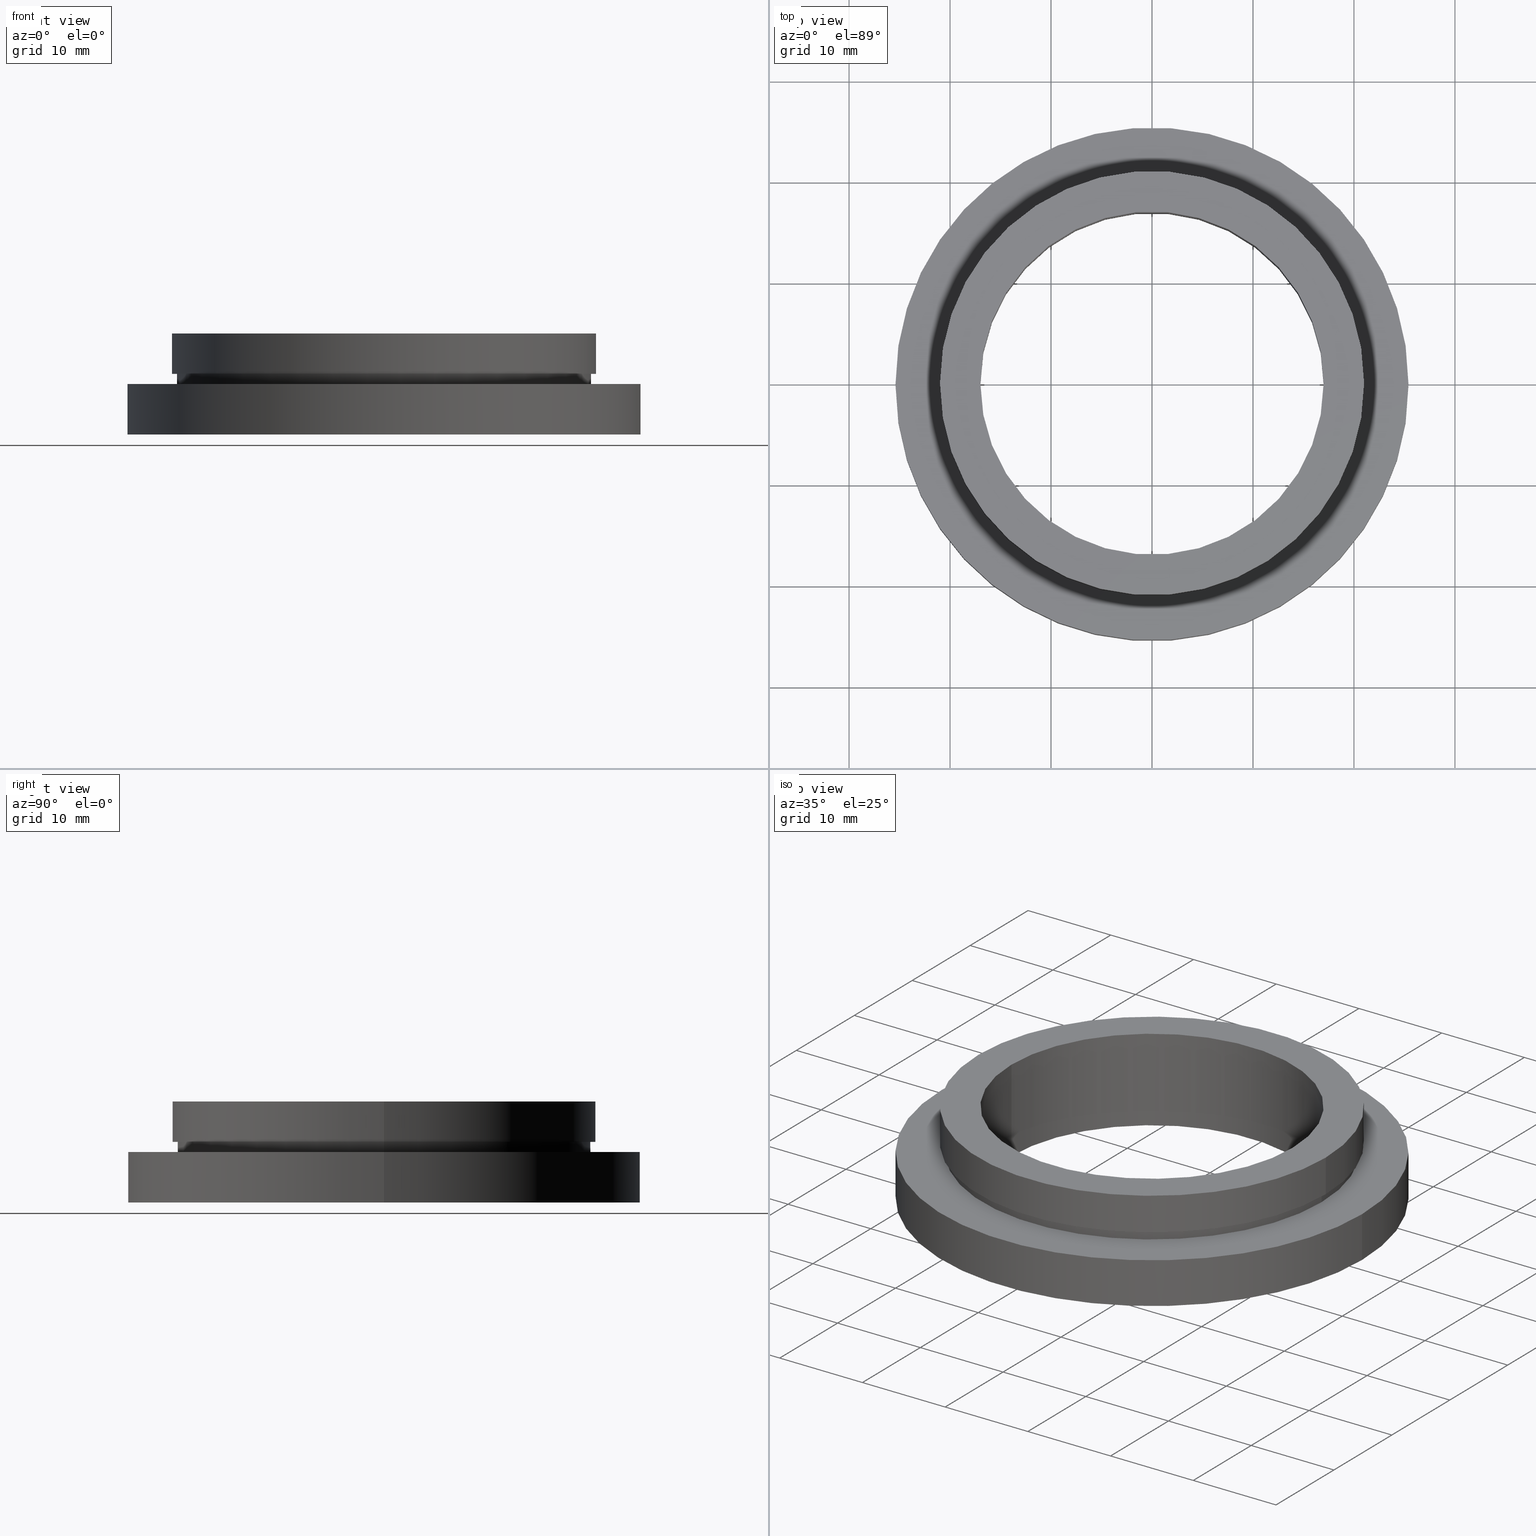
[diagram: canonical four-view strip — front | top / right | iso, engineering-drawing reading convention]
A machine part, canonical four-view strip (front | top / right | iso — engineering-drawing reading convention). The complete STEP part file that produces these views, byte-faithful:
ISO-10303-21;
HEADER;
FILE_DESCRIPTION (( 'STEP AP214' ),
    '1' );
FILE_NAME ('504030.STEP',
    '2019-09-16T03:02:55',
    ( 'user' ),
    ( '΢���й�' ),
    'SwSTEP 2.0',
    'SolidWorks 2016',
    '' );
FILE_SCHEMA (( 'AUTOMOTIVE_DESIGN' ));
ENDSEC;

DATA;
#1 = MECHANICAL_DESIGN_GEOMETRIC_PRESENTATION_REPRESENTATION (  '', ( #340 ), #328 ) ;
#2 = FACE_OUTER_BOUND ( 'NONE', #292, .T. ) ;
#3 = UNCERTAINTY_MEASURE_WITH_UNIT (LENGTH_MEASURE( 1.000000000000000100E-005 ), #169, 'distance_accuracy_value', 'NONE');
#4 = SURFACE_STYLE_USAGE ( .BOTH. , #245 ) ;
#5 = AXIS2_PLACEMENT_3D ( 'NONE', #32, #348, #191 ) ;
#6 = CARTESIAN_POINT ( 'NONE',  ( 0.0000000000000000000, 0.0000000000000000000, -10.00000000000000000 ) ) ;
#7 = PRODUCT_DEFINITION_CONTEXT ( 'detailed design', #282, 'design' ) ;
#8 = DIRECTION ( 'NONE',  ( -1.000000000000000000, 0.0000000000000000000, 0.0000000000000000000 ) ) ;
#9 = SURFACE_STYLE_FILL_AREA ( #299 ) ;
#10 = EDGE_CURVE ( 'NONE', #219, #157, #46, .T. ) ;
#11 = FILL_AREA_STYLE_COLOUR ( '', #62 ) ;
#12 = ORIENTED_EDGE ( 'NONE', *, *, #338, .F. ) ;
#13 = CARTESIAN_POINT ( 'NONE',  ( 20.50000000000000400, 2.510525938252074500E-015, -4.000000000000000000 ) ) ;
#14 = CARTESIAN_POINT ( 'NONE',  ( -25.39999999999999900, 0.0000000000000000000, -5.000000000000000900 ) ) ;
#15 = PRESENTATION_STYLE_ASSIGNMENT (( #92 ) ) ;
#16 = COLOUR_RGB ( '',1.000000000000000000, 1.000000000000000000, 1.000000000000000000 ) ;
#17 = ORIENTED_EDGE ( 'NONE', *, *, #105, .T. ) ;
#18 = LINE ( 'NONE', #253, #23 ) ;
#19 = ORIENTED_EDGE ( 'NONE', *, *, #400, .F. ) ;
#20 = DIRECTION ( 'NONE',  ( -0.0000000000000000000, -0.0000000000000000000, -1.000000000000000000 ) ) ;
#21 = PRESENTATION_LAYER_ASSIGNMENT (  '', '', ( #182 ) ) ;
#22 =( NAMED_UNIT ( * ) SI_UNIT ( $, .STERADIAN. ) SOLID_ANGLE_UNIT ( ) );
#23 = VECTOR ( 'NONE', #290, 1000.000000000000000 ) ;
#24 =( NAMED_UNIT ( * ) PLANE_ANGLE_UNIT ( ) SI_UNIT ( $, .RADIAN. ) );
#25 = CARTESIAN_POINT ( 'NONE',  ( -21.00000000000000400, 0.0000000000000000000, -19.14057971014493000 ) ) ;
#26 = CIRCLE ( 'NONE', #164, 17.00000000000000400 ) ;
#27 = ORIENTED_EDGE ( 'NONE', *, *, #360, .F. ) ;
#28 = VECTOR ( 'NONE', #179, 1000.000000000000000 ) ;
#29 = DIRECTION ( 'NONE',  ( -0.0000000000000000000, -0.0000000000000000000, -1.000000000000000000 ) ) ;
#30 = EDGE_CURVE ( 'NONE', #315, #326, #63, .T. ) ;
#31 = SURFACE_STYLE_FILL_AREA ( #38 ) ;
#32 = CARTESIAN_POINT ( 'NONE',  ( 25.39999999999999900, 0.0000000000000000000, -9.999999999999998200 ) ) ;
#33 = CARTESIAN_POINT ( 'NONE',  ( 21.00000000000000400, 2.571758278209442100E-015, -4.000000000000000000 ) ) ;
#34 = CIRCLE ( 'NONE', #269, 20.50000000000000400 ) ;
#35 = PRESENTATION_STYLE_ASSIGNMENT (( #409 ) ) ;
#36 = ORIENTED_EDGE ( 'NONE', *, *, #276, .T. ) ;
#37 = APPLICATION_PROTOCOL_DEFINITION ( 'draft international standard', 'automotive_design', 1998, #282 ) ;
#38 = FILL_AREA_STYLE ('',( #248 ) ) ;
#39 = FACE_BOUND ( 'NONE', #320, .T. ) ;
#40 = CARTESIAN_POINT ( 'NONE',  ( 0.0000000000000000000, 0.0000000000000000000, 0.0000000000000000000 ) ) ;
#41 = ORIENTED_EDGE ( 'NONE', *, *, #250, .F. ) ;
#42 = DIRECTION ( 'NONE',  ( -1.000000000000000000, 0.0000000000000000000, 0.0000000000000000000 ) ) ;
#43 = UNCERTAINTY_MEASURE_WITH_UNIT (LENGTH_MEASURE( 1.000000000000000100E-005 ), #202, 'distance_accuracy_value', 'NONE');
#44 = CYLINDRICAL_SURFACE ( 'NONE', #408, 17.00000000000000400 ) ;
#45 = DIRECTION ( 'NONE',  ( -1.000000000000000000, 0.0000000000000000000, 0.0000000000000000000 ) ) ;
#46 = CIRCLE ( 'NONE', #204, 21.00000000000000400 ) ;
#47 = EDGE_CURVE ( 'NONE', #188, #123, #18, .T. ) ;
#48 = CARTESIAN_POINT ( 'NONE',  ( 20.50000000000000400, 2.510525938252074500E-015, -5.000000000000000900 ) ) ;
#49 = EDGE_LOOP ( 'NONE', ( #111, #421, #224, #405 ) ) ;
#50 = CARTESIAN_POINT ( 'NONE',  ( 17.00000000000000400, 2.081899558550500700E-015, -9.999999999999998200 ) ) ;
#51 = VERTEX_POINT ( 'NONE', #419 ) ;
#52 = MECHANICAL_DESIGN_GEOMETRIC_PRESENTATION_REPRESENTATION (  '', ( #163 ), #137 ) ;
#53 = DIRECTION ( 'NONE',  ( -0.0000000000000000000, 0.0000000000000000000, -1.000000000000000000 ) ) ;
#54 = PRESENTATION_LAYER_ASSIGNMENT (  '', '', ( #337 ) ) ;
#55 = DIRECTION ( 'NONE',  ( -1.000000000000000000, 0.0000000000000000000, 0.0000000000000000000 ) ) ;
#56 = ORIENTED_EDGE ( 'NONE', *, *, #241, .T. ) ;
#57 = ORIENTED_EDGE ( 'NONE', *, *, #30, .F. ) ;
#58 =( GEOMETRIC_REPRESENTATION_CONTEXT ( 3 ) GLOBAL_UNCERTAINTY_ASSIGNED_CONTEXT ( ( #368 ) ) GLOBAL_UNIT_ASSIGNED_CONTEXT ( ( #298, #260, #22 ) ) REPRESENTATION_CONTEXT ( 'NONE', 'WORKASPACE' ) );
#59 = CARTESIAN_POINT ( 'NONE',  ( 0.0000000000000000000, 0.0000000000000000000, -19.14057971014493000 ) ) ;
#60 = LINE ( 'NONE', #134, #332 ) ;
#61 = FILL_AREA_STYLE_COLOUR ( '', #16 ) ;
#62 = COLOUR_RGB ( '',1.000000000000000000, 1.000000000000000000, 1.000000000000000000 ) ;
#63 = LINE ( 'NONE', #80, #236 ) ;
#64 = CARTESIAN_POINT ( 'NONE',  ( 0.0000000000000000000, 0.0000000000000000000, -19.14057971014493000 ) ) ;
#65 = PRESENTATION_STYLE_ASSIGNMENT (( #87 ) ) ;
#66 = ORIENTED_EDGE ( 'NONE', *, *, #47, .T. ) ;
#67 = EDGE_LOOP ( 'NONE', ( #422, #85 ) ) ;
#68 = PRESENTATION_LAYER_ASSIGNMENT (  '', '', ( #86 ) ) ;
#69 = PRODUCT_CONTEXT ( 'NONE', #71, 'mechanical' ) ;
#70 = CYLINDRICAL_SURFACE ( 'NONE', #365, 21.00000000000000400 ) ;
#71 = APPLICATION_CONTEXT ( 'automotive_design' ) ;
#72 = VERTEX_POINT ( 'NONE', #14 ) ;
#73 = ORIENTED_EDGE ( 'NONE', *, *, #276, .F. ) ;
#74 = DIRECTION ( 'NONE',  ( -1.000000000000000000, 0.0000000000000000000, 0.0000000000000000000 ) ) ;
#75 = AXIS2_PLACEMENT_3D ( 'NONE', #117, #53, #42 ) ;
#76 = DIRECTION ( 'NONE',  ( -1.000000000000000000, 0.0000000000000000000, 0.0000000000000000000 ) ) ;
#77 = AXIS2_PLACEMENT_3D ( 'NONE', #59, #29, #94 ) ;
#78 = EDGE_LOOP ( 'NONE', ( #375, #246 ) ) ;
#79 = AXIS2_PLACEMENT_3D ( 'NONE', #6, #211, #412 ) ;
#80 = CARTESIAN_POINT ( 'NONE',  ( -17.00000000000000400, 0.0000000000000000000, -19.14057971014493000 ) ) ;
#81 = CYLINDRICAL_SURFACE ( 'NONE', #99, 20.50000000000000400 ) ;
#82 = UNCERTAINTY_MEASURE_WITH_UNIT (LENGTH_MEASURE( 1.000000000000000100E-005 ), #265, 'distance_accuracy_value', 'NONE');
#83 = DIRECTION ( 'NONE',  ( -0.0000000000000000000, -0.0000000000000000000, -1.000000000000000000 ) ) ;
#84 = VERTEX_POINT ( 'NONE', #33 ) ;
#85 = ORIENTED_EDGE ( 'NONE', *, *, #257, .T. ) ;
#86 = STYLED_ITEM ( 'NONE', ( #15 ), #237 ) ;
#87 = SURFACE_STYLE_USAGE ( .BOTH. , #334 ) ;
#88 = FACE_OUTER_BOUND ( 'NONE', #358, .T. ) ;
#89 = SURFACE_SIDE_STYLE ('',( #162 ) ) ;
#90 = CARTESIAN_POINT ( 'NONE',  ( 0.0000000000000000000, 0.0000000000000000000, 0.0000000000000000000 ) ) ;
#91 = AXIS2_PLACEMENT_3D ( 'NONE', #214, #170, #8 ) ;
#92 = SURFACE_STYLE_USAGE ( .BOTH. , #243 ) ;
#93 = CIRCLE ( 'NONE', #295, 21.00000000000000400 ) ;
#94 = DIRECTION ( 'NONE',  ( -1.000000000000000000, 0.0000000000000000000, 0.0000000000000000000 ) ) ;
#95 = EDGE_LOOP ( 'NONE', ( #19, #389, #97, #407 ) ) ;
#96 = DIRECTION ( 'NONE',  ( -0.0000000000000000000, -0.0000000000000000000, -1.000000000000000000 ) ) ;
#97 = ORIENTED_EDGE ( 'NONE', *, *, #30, .T. ) ;
#98 = EDGE_CURVE ( 'NONE', #304, #326, #258, .T. ) ;
#99 = AXIS2_PLACEMENT_3D ( 'NONE', #403, #433, #369 ) ;
#100 = EDGE_CURVE ( 'NONE', #235, #112, #181, .T. ) ;
#101 = FACE_BOUND ( 'NONE', #252, .T. ) ;
#102 = EDGE_LOOP ( 'NONE', ( #230, #223, #36, #131 ) ) ;
#103 = DIRECTION ( 'NONE',  ( 1.000000000000000000, 0.0000000000000000000, 0.0000000000000000000 ) ) ;
#104 = APPLICATION_PROTOCOL_DEFINITION ( 'draft international standard', 'automotive_design', 1998, #71 ) ;
#105 = EDGE_CURVE ( 'NONE', #125, #84, #132, .T. ) ;
#106 = FILL_AREA_STYLE ('',( #150 ) ) ;
#107 = CARTESIAN_POINT ( 'NONE',  ( 0.0000000000000000000, 0.0000000000000000000, -9.999999999999998200 ) ) ;
#108 = LINE ( 'NONE', #355, #278 ) ;
#109 = CARTESIAN_POINT ( 'NONE',  ( 0.0000000000000000000, 0.0000000000000000000, -4.000000000000000000 ) ) ;
#110 = DIRECTION ( 'NONE',  ( -0.0000000000000000000, -0.0000000000000000000, -1.000000000000000000 ) ) ;
#111 = ORIENTED_EDGE ( 'NONE', *, *, #100, .T. ) ;
#112 = VERTEX_POINT ( 'NONE', #13 ) ;
#113 = CARTESIAN_POINT ( 'NONE',  ( -20.50000000000000400, 0.0000000000000000000, -5.000000000000000900 ) ) ;
#114 = FILL_AREA_STYLE_COLOUR ( '', #385 ) ;
#115 = ORIENTED_EDGE ( 'NONE', *, *, #400, .T. ) ;
#116 = PRESENTATION_LAYER_ASSIGNMENT (  '', '', ( #163 ) ) ;
#117 = CARTESIAN_POINT ( 'NONE',  ( 20.50000000000000400, 0.0000000000000000000, -5.000000000000000000 ) ) ;
#118 = CARTESIAN_POINT ( 'NONE',  ( -17.00000000000000400, 0.0000000000000000000, 0.0000000000000000000 ) ) ;
#119 = ORIENTED_EDGE ( 'NONE', *, *, #420, .F. ) ;
#120 =( NAMED_UNIT ( * ) SI_UNIT ( $, .STERADIAN. ) SOLID_ANGLE_UNIT ( ) );
#121 = CARTESIAN_POINT ( 'NONE',  ( 0.0000000000000000000, 0.0000000000000000000, -10.00000000000000000 ) ) ;
#122 = DIRECTION ( 'NONE',  ( -0.0000000000000000000, -0.0000000000000000000, -1.000000000000000000 ) ) ;
#123 = VERTEX_POINT ( 'NONE', #136 ) ;
#124 = COLOUR_RGB ( '',1.000000000000000000, 1.000000000000000000, 1.000000000000000000 ) ;
#125 = VERTEX_POINT ( 'NONE', #354 ) ;
#126 = ORIENTED_EDGE ( 'NONE', *, *, #347, .F. ) ;
#127 = DIRECTION ( 'NONE',  ( -0.0000000000000000000, -0.0000000000000000000, -1.000000000000000000 ) ) ;
#128 = AXIS2_PLACEMENT_3D ( 'NONE', #216, #175, #384 ) ;
#129 = PRESENTATION_LAYER_ASSIGNMENT (  '', '', ( #340 ) ) ;
#130 =( NAMED_UNIT ( * ) SI_UNIT ( $, .STERADIAN. ) SOLID_ANGLE_UNIT ( ) );
#131 = ORIENTED_EDGE ( 'NONE', *, *, #335, .F. ) ;
#132 = CIRCLE ( 'NONE', #165, 21.00000000000000400 ) ;
#133 = DIRECTION ( 'NONE',  ( -0.0000000000000000000, -0.0000000000000000000, -1.000000000000000000 ) ) ;
#134 = CARTESIAN_POINT ( 'NONE',  ( 17.00000000000000400, 2.081899558550500700E-015, -19.14057971014493000 ) ) ;
#135 =( GEOMETRIC_REPRESENTATION_CONTEXT ( 3 ) GLOBAL_UNCERTAINTY_ASSIGNED_CONTEXT ( ( #43 ) ) GLOBAL_UNIT_ASSIGNED_CONTEXT ( ( #202, #373, #429 ) ) REPRESENTATION_CONTEXT ( 'NONE', 'WORKASPACE' ) );
#136 = CARTESIAN_POINT ( 'NONE',  ( 25.39999999999999900, 3.110602869834276900E-015, -10.00000000000000000 ) ) ;
#137 =( GEOMETRIC_REPRESENTATION_CONTEXT ( 3 ) GLOBAL_UNCERTAINTY_ASSIGNED_CONTEXT ( ( #279 ) ) GLOBAL_UNIT_ASSIGNED_CONTEXT ( ( #152, #366, #120 ) ) REPRESENTATION_CONTEXT ( 'NONE', 'WORKASPACE' ) );
#138 = FACE_OUTER_BOUND ( 'NONE', #67, .T. ) ;
#139 = ORIENTED_EDGE ( 'NONE', *, *, #309, .F. ) ;
#140 = CARTESIAN_POINT ( 'NONE',  ( 0.0000000000000000000, 0.0000000000000000000, 0.0000000000000000000 ) ) ;
#141 = CARTESIAN_POINT ( 'NONE',  ( 25.39999999999999900, 3.110602869834276900E-015, -5.000000000000000900 ) ) ;
#142 = VECTOR ( 'NONE', #229, 1000.000000000000000 ) ;
#143 = DIRECTION ( 'NONE',  ( -1.000000000000000000, 0.0000000000000000000, 0.0000000000000000000 ) ) ;
#144 = CIRCLE ( 'NONE', #283, 17.00000000000000400 ) ;
#145 = ORIENTED_EDGE ( 'NONE', *, *, #98, .F. ) ;
#146 = CARTESIAN_POINT ( 'NONE',  ( 17.00000000000000400, 2.081899558550500700E-015, 0.0000000000000000000 ) ) ;
#147 = DIRECTION ( 'NONE',  ( -1.000000000000000000, 0.0000000000000000000, 0.0000000000000000000 ) ) ;
#148 = DIRECTION ( 'NONE',  ( -1.000000000000000000, 0.0000000000000000000, 0.0000000000000000000 ) ) ;
#149 = CYLINDRICAL_SURFACE ( 'NONE', #77, 21.00000000000000400 ) ;
#150 = FILL_AREA_STYLE_COLOUR ( '', #391 ) ;
#151 = DIRECTION ( 'NONE',  ( -1.000000000000000000, 0.0000000000000000000, 0.0000000000000000000 ) ) ;
#152 =( LENGTH_UNIT ( ) NAMED_UNIT ( * ) SI_UNIT ( .MILLI., .METRE. ) );
#153 = SURFACE_STYLE_FILL_AREA ( #106 ) ;
#154 = MANIFOLD_SOLID_BREP ( '��ת1', #357 ) ;
#155 = VECTOR ( 'NONE', #122, 1000.000000000000000 ) ;
#156 = DIRECTION ( 'NONE',  ( -0.0000000000000000000, -0.0000000000000000000, -1.000000000000000000 ) ) ;
#157 = VERTEX_POINT ( 'NONE', #325 ) ;
#158 = ORIENTED_EDGE ( 'NONE', *, *, #192, .T. ) ;
#159 = PLANE ( 'NONE',  #5 ) ;
#160 = FACE_BOUND ( 'NONE', #180, .T. ) ;
#161 = PRESENTATION_STYLE_ASSIGNMENT (( #4 ) ) ;
#162 = SURFACE_STYLE_FILL_AREA ( #267 ) ;
#163 = STYLED_ITEM ( 'NONE', ( #430 ), #263 ) ;
#164 = AXIS2_PLACEMENT_3D ( 'NONE', #90, #301, #55 ) ;
#165 = AXIS2_PLACEMENT_3D ( 'NONE', #109, #324, #76 ) ;
#166 = SURFACE_STYLE_FILL_AREA ( #431 ) ;
#167 =( NAMED_UNIT ( * ) SI_UNIT ( $, .STERADIAN. ) SOLID_ANGLE_UNIT ( ) );
#168 = ORIENTED_EDGE ( 'NONE', *, *, #331, .T. ) ;
#169 =( LENGTH_UNIT ( ) NAMED_UNIT ( * ) SI_UNIT ( .MILLI., .METRE. ) );
#170 = DIRECTION ( 'NONE',  ( -0.0000000000000000000, -0.0000000000000000000, -1.000000000000000000 ) ) ;
#171 = CYLINDRICAL_SURFACE ( 'NONE', #222, 17.00000000000000400 ) ;
#172 = SURFACE_SIDE_STYLE ('',( #418 ) ) ;
#173 = CYLINDRICAL_SURFACE ( 'NONE', #314, 20.50000000000000400 ) ;
#174 = ORIENTED_EDGE ( 'NONE', *, *, #209, .T. ) ;
#175 = DIRECTION ( 'NONE',  ( -0.0000000000000000000, -0.0000000000000000000, -1.000000000000000000 ) ) ;
#176 = DIRECTION ( 'NONE',  ( -0.0000000000000000000, -0.0000000000000000000, -1.000000000000000000 ) ) ;
#177 = AXIS2_PLACEMENT_3D ( 'NONE', #187, #393, #147 ) ;
#178 = FACE_OUTER_BOUND ( 'NONE', #194, .T. ) ;
#179 = DIRECTION ( 'NONE',  ( -0.0000000000000000000, -0.0000000000000000000, -1.000000000000000000 ) ) ;
#180 = EDGE_LOOP ( 'NONE', ( #287, #126 ) ) ;
#181 = CIRCLE ( 'NONE', #128, 20.50000000000000400 ) ;
#182 = STYLED_ITEM ( 'NONE', ( #35 ), #154 ) ;
#183 = EDGE_LOOP ( 'NONE', ( #247, #414, #240, #392 ) ) ;
#184 = CARTESIAN_POINT ( 'NONE',  ( 0.0000000000000000000, 0.0000000000000000000, -4.000000000000000000 ) ) ;
#185 = CARTESIAN_POINT ( 'NONE',  ( -20.50000000000000400, 0.0000000000000000000, -4.000000000000000000 ) ) ;
#186 = DIRECTION ( 'NONE',  ( -1.000000000000000000, 0.0000000000000000000, 0.0000000000000000000 ) ) ;
#187 = CARTESIAN_POINT ( 'NONE',  ( 0.0000000000000000000, 0.0000000000000000000, -5.000000000000000900 ) ) ;
#188 = VERTEX_POINT ( 'NONE', #141 ) ;
#189 = CARTESIAN_POINT ( 'NONE',  ( 0.0000000000000000000, 0.0000000000000000000, -19.14057971014493000 ) ) ;
#190 = DIRECTION ( 'NONE',  ( -0.0000000000000000000, -0.0000000000000000000, -1.000000000000000000 ) ) ;
#191 = DIRECTION ( 'NONE',  ( 1.000000000000000000, 0.0000000000000000000, -0.0000000000000000000 ) ) ;
#192 = EDGE_CURVE ( 'NONE', #219, #84, #273, .T. ) ;
#193 = DIRECTION ( 'NONE',  ( 1.000000000000000000, 0.0000000000000000000, -0.0000000000000000000 ) ) ;
#194 = EDGE_LOOP ( 'NONE', ( #313, #158, #293, #73 ) ) ;
#195 = SURFACE_SIDE_STYLE ('',( #166 ) ) ;
#196 = AXIS2_PLACEMENT_3D ( 'NONE', #259, #20, #221 ) ;
#197 = MECHANICAL_DESIGN_GEOMETRIC_PRESENTATION_REPRESENTATION (  '', ( #207 ), #58 ) ;
#198 = PLANE ( 'NONE',  #75 ) ;
#199 = UNCERTAINTY_MEASURE_WITH_UNIT (LENGTH_MEASURE( 1.000000000000000100E-005 ), #210, 'distance_accuracy_value', 'NONE');
#200 =( GEOMETRIC_REPRESENTATION_CONTEXT ( 3 ) GLOBAL_UNCERTAINTY_ASSIGNED_CONTEXT ( ( #199 ) ) GLOBAL_UNIT_ASSIGNED_CONTEXT ( ( #210, #410, #167 ) ) REPRESENTATION_CONTEXT ( 'NONE', 'WORKASPACE' ) );
#201 = CIRCLE ( 'NONE', #270, 20.50000000000000400 ) ;
#202 =( LENGTH_UNIT ( ) NAMED_UNIT ( * ) SI_UNIT ( .MILLI., .METRE. ) );
#203 = LINE ( 'NONE', #432, #397 ) ;
#204 = AXIS2_PLACEMENT_3D ( 'NONE', #140, #176, #45 ) ;
#205 = FACE_OUTER_BOUND ( 'NONE', #95, .T. ) ;
#206 = ORIENTED_EDGE ( 'NONE', *, *, #335, .T. ) ;
#207 = STYLED_ITEM ( 'NONE', ( #65 ), #330 ) ;
#208 = ORIENTED_EDGE ( 'NONE', *, *, #213, .F. ) ;
#209 = EDGE_CURVE ( 'NONE', #235, #372, #108, .T. ) ;
#210 =( LENGTH_UNIT ( ) NAMED_UNIT ( * ) SI_UNIT ( .MILLI., .METRE. ) );
#211 = DIRECTION ( 'NONE',  ( -0.0000000000000000000, -0.0000000000000000000, -1.000000000000000000 ) ) ;
#212 = PRODUCT_RELATED_PRODUCT_CATEGORY ( 'part', '', ( #362 ) ) ;
#213 = EDGE_CURVE ( 'NONE', #112, #344, #203, .T. ) ;
#214 = CARTESIAN_POINT ( 'NONE',  ( 0.0000000000000000000, 0.0000000000000000000, -19.14057971014493000 ) ) ;
#215 = EDGE_LOOP ( 'NONE', ( #139, #115, #406, #57 ) ) ;
#216 = CARTESIAN_POINT ( 'NONE',  ( 0.0000000000000000000, 0.0000000000000000000, -4.000000000000000000 ) ) ;
#217 = AXIS2_PLACEMENT_3D ( 'NONE', #339, #396, #151 ) ;
#218 = ORIENTED_EDGE ( 'NONE', *, *, #331, .F. ) ;
#219 = VERTEX_POINT ( 'NONE', #426 ) ;
#220 = DIRECTION ( 'NONE',  ( -0.0000000000000000000, -0.0000000000000000000, -1.000000000000000000 ) ) ;
#221 = DIRECTION ( 'NONE',  ( -1.000000000000000000, 0.0000000000000000000, 0.0000000000000000000 ) ) ;
#222 = AXIS2_PLACEMENT_3D ( 'NONE', #189, #333, #394 ) ;
#223 = ORIENTED_EDGE ( 'NONE', *, *, #10, .T. ) ;
#224 = ORIENTED_EDGE ( 'NONE', *, *, #310, .F. ) ;
#225 = CARTESIAN_POINT ( 'NONE',  ( -17.00000000000000400, 0.0000000000000000000, -9.999999999999998200 ) ) ;
#226 =( NAMED_UNIT ( * ) SI_UNIT ( $, .STERADIAN. ) SOLID_ANGLE_UNIT ( ) );
#227 = ADVANCED_FACE ( 'NONE', ( #281, #101 ), #198, .F. ) ;
#228 = CARTESIAN_POINT ( 'NONE',  ( 0.0000000000000000000, 0.0000000000000000000, -5.000000000000000900 ) ) ;
#229 = DIRECTION ( 'NONE',  ( -0.0000000000000000000, -0.0000000000000000000, -1.000000000000000000 ) ) ;
#230 = ORIENTED_EDGE ( 'NONE', *, *, #192, .F. ) ;
#231 = PLANE ( 'NONE',  #291 ) ;
#232 = ADVANCED_FACE ( 'NONE', ( #2 ), #434, .T. ) ;
#233 = DIRECTION ( 'NONE',  ( 0.0000000000000000000, 0.0000000000000000000, 1.000000000000000000 ) ) ;
#234 = CIRCLE ( 'NONE', #79, 25.39999999999999900 ) ;
#235 = VERTEX_POINT ( 'NONE', #185 ) ;
#236 = VECTOR ( 'NONE', #110, 1000.000000000000000 ) ;
#237 = ADVANCED_FACE ( 'NONE', ( #205 ), #44, .F. ) ;
#238 = ADVANCED_FACE ( 'NONE', ( #39, #138 ), #159, .F. ) ;
#239 = ORIENTED_EDGE ( 'NONE', *, *, #310, .T. ) ;
#240 = ORIENTED_EDGE ( 'NONE', *, *, #250, .T. ) ;
#241 = EDGE_CURVE ( 'NONE', #72, #188, #342, .T. ) ;
#242 = AXIS2_PLACEMENT_3D ( 'NONE', #329, #83, #294 ) ;
#243 = SURFACE_SIDE_STYLE ('',( #153 ) ) ;
#244 = CIRCLE ( 'NONE', #346, 17.00000000000000400 ) ;
#245 = SURFACE_SIDE_STYLE ('',( #31 ) ) ;
#246 = ORIENTED_EDGE ( 'NONE', *, *, #322, .F. ) ;
#247 = ORIENTED_EDGE ( 'NONE', *, *, #47, .F. ) ;
#248 = FILL_AREA_STYLE_COLOUR ( '', #124 ) ;
#249 = MECHANICAL_DESIGN_GEOMETRIC_PRESENTATION_REPRESENTATION (  '', ( #337 ), #200 ) ;
#250 = EDGE_CURVE ( 'NONE', #72, #51, #272, .T. ) ;
#251 = DIRECTION ( 'NONE',  ( -1.000000000000000000, 0.0000000000000000000, 0.0000000000000000000 ) ) ;
#252 = EDGE_LOOP ( 'NONE', ( #239, #168 ) ) ;
#253 = CARTESIAN_POINT ( 'NONE',  ( 25.39999999999999900, 3.110602869834276900E-015, -19.14057971014493000 ) ) ;
#254 = DIRECTION ( 'NONE',  ( -0.0000000000000000000, -0.0000000000000000000, -1.000000000000000000 ) ) ;
#255 = FACE_OUTER_BOUND ( 'NONE', #215, .T. ) ;
#256 = CIRCLE ( 'NONE', #196, 20.50000000000000400 ) ;
#257 = EDGE_CURVE ( 'NONE', #123, #51, #356, .T. ) ;
#258 = CIRCLE ( 'NONE', #351, 17.00000000000000400 ) ;
#259 = CARTESIAN_POINT ( 'NONE',  ( 0.0000000000000000000, 0.0000000000000000000, -5.000000000000000900 ) ) ;
#260 =( NAMED_UNIT ( * ) PLANE_ANGLE_UNIT ( ) SI_UNIT ( $, .RADIAN. ) );
#261 = PRODUCT_DEFINITION_SHAPE ( 'NONE', 'NONE',  #380 ) ;
#262 = ADVANCED_FACE ( 'NONE', ( #312 ), #81, .T. ) ;
#263 = ADVANCED_FACE ( 'NONE', ( #178 ), #149, .T. ) ;
#264 = CIRCLE ( 'NONE', #177, 25.39999999999999900 ) ;
#265 =( LENGTH_UNIT ( ) NAMED_UNIT ( * ) SI_UNIT ( .MILLI., .METRE. ) );
#266 = ADVANCED_FACE ( 'NONE', ( #160, #404 ), #231, .F. ) ;
#267 = FILL_AREA_STYLE ('',( #114 ) ) ;
#268 = ADVANCED_FACE ( 'NONE', ( #425 ), #173, .T. ) ;
#269 = AXIS2_PLACEMENT_3D ( 'NONE', #417, #387, #383 ) ;
#270 = AXIS2_PLACEMENT_3D ( 'NONE', #228, #190, #364 ) ;
#271 = DIRECTION ( 'NONE',  ( -0.0000000000000000000, -0.0000000000000000000, -1.000000000000000000 ) ) ;
#272 = LINE ( 'NONE', #370, #155 ) ;
#273 = LINE ( 'NONE', #288, #28 ) ;
#274 = AXIS2_PLACEMENT_3D ( 'NONE', #363, #336, #148 ) ;
#275 = DIRECTION ( 'NONE',  ( -1.000000000000000000, 0.0000000000000000000, 0.0000000000000000000 ) ) ;
#276 = EDGE_CURVE ( 'NONE', #157, #125, #318, .T. ) ;
#277 = CYLINDRICAL_SURFACE ( 'NONE', #274, 25.39999999999999900 ) ;
#278 = VECTOR ( 'NONE', #254, 1000.000000000000000 ) ;
#279 = UNCERTAINTY_MEASURE_WITH_UNIT (LENGTH_MEASURE( 1.000000000000000100E-005 ), #152, 'distance_accuracy_value', 'NONE');
#280 = ADVANCED_FACE ( 'NONE', ( #88, #416 ), #427, .F. ) ;
#281 = FACE_OUTER_BOUND ( 'NONE', #78, .T. ) ;
#282 = APPLICATION_CONTEXT ( 'automotive_design' ) ;
#283 = AXIS2_PLACEMENT_3D ( 'NONE', #107, #323, #74 ) ;
#284 =( NAMED_UNIT ( * ) SI_UNIT ( $, .STERADIAN. ) SOLID_ANGLE_UNIT ( ) );
#285 = AXIS2_PLACEMENT_3D ( 'NONE', #345, #96, #307 ) ;
#286 = FACE_OUTER_BOUND ( 'NONE', #183, .T. ) ;
#287 = ORIENTED_EDGE ( 'NONE', *, *, #100, .F. ) ;
#288 = CARTESIAN_POINT ( 'NONE',  ( 21.00000000000000400, 2.571758278209442100E-015, -19.14057971014493000 ) ) ;
#289 = CARTESIAN_POINT ( 'NONE',  ( 0.0000000000000000000, 0.0000000000000000000, -9.999999999999998200 ) ) ;
#290 = DIRECTION ( 'NONE',  ( -0.0000000000000000000, -0.0000000000000000000, -1.000000000000000000 ) ) ;
#291 = AXIS2_PLACEMENT_3D ( 'NONE', #305, #233, #193 ) ;
#292 = EDGE_LOOP ( 'NONE', ( #56, #66, #119, #41 ) ) ;
#293 = ORIENTED_EDGE ( 'NONE', *, *, #105, .F. ) ;
#294 = DIRECTION ( 'NONE',  ( -1.000000000000000000, 0.0000000000000000000, 0.0000000000000000000 ) ) ;
#295 = AXIS2_PLACEMENT_3D ( 'NONE', #184, #390, #143 ) ;
#296 = PRESENTATION_LAYER_ASSIGNMENT (  '', '', ( #207 ) ) ;
#297 = COLOUR_RGB ( '',1.000000000000000000, 1.000000000000000000, 1.000000000000000000 ) ;
#298 =( LENGTH_UNIT ( ) NAMED_UNIT ( * ) SI_UNIT ( .MILLI., .METRE. ) );
#299 = FILL_AREA_STYLE ('',( #424 ) ) ;
#300 = SURFACE_STYLE_USAGE ( .BOTH. , #89 ) ;
#301 = DIRECTION ( 'NONE',  ( -0.0000000000000000000, -0.0000000000000000000, -1.000000000000000000 ) ) ;
#302 = SHAPE_DEFINITION_REPRESENTATION ( #261, #308 ) ;
#303 = VERTEX_POINT ( 'NONE', #146 ) ;
#304 = VERTEX_POINT ( 'NONE', #50 ) ;
#305 = CARTESIAN_POINT ( 'NONE',  ( 21.00000000000000400, 0.0000000000000000000, -4.000000000000000000 ) ) ;
#306 = DIRECTION ( 'NONE',  ( -1.000000000000000000, 0.0000000000000000000, 0.0000000000000000000 ) ) ;
#307 = DIRECTION ( 'NONE',  ( -1.000000000000000000, 0.0000000000000000000, 0.0000000000000000000 ) ) ;
#308 = ADVANCED_BREP_SHAPE_REPRESENTATION ( '504030', ( #154, #327 ), #371 ) ;
#309 = EDGE_CURVE ( 'NONE', #303, #315, #26, .T. ) ;
#310 = EDGE_CURVE ( 'NONE', #372, #344, #201, .T. ) ;
#311 = DIRECTION ( 'NONE',  ( -0.0000000000000000000, -0.0000000000000000000, -1.000000000000000000 ) ) ;
#312 = FACE_OUTER_BOUND ( 'NONE', #49, .T. ) ;
#313 = ORIENTED_EDGE ( 'NONE', *, *, #338, .T. ) ;
#314 = AXIS2_PLACEMENT_3D ( 'NONE', #399, #271, #428 ) ;
#315 = VERTEX_POINT ( 'NONE', #118 ) ;
#316 = ADVANCED_FACE ( 'NONE', ( #255 ), #171, .F. ) ;
#317 =( LENGTH_UNIT ( ) NAMED_UNIT ( * ) SI_UNIT ( .MILLI., .METRE. ) );
#318 = LINE ( 'NONE', #25, #142 ) ;
#319 = ORIENTED_EDGE ( 'NONE', *, *, #10, .F. ) ;
#320 = EDGE_LOOP ( 'NONE', ( #27, #145 ) ) ;
#321 = ADVANCED_FACE ( 'NONE', ( #286 ), #277, .T. ) ;
#322 = EDGE_CURVE ( 'NONE', #188, #72, #264, .T. ) ;
#323 = DIRECTION ( 'NONE',  ( -0.0000000000000000000, -0.0000000000000000000, -1.000000000000000000 ) ) ;
#324 = DIRECTION ( 'NONE',  ( -0.0000000000000000000, -0.0000000000000000000, -1.000000000000000000 ) ) ;
#325 = CARTESIAN_POINT ( 'NONE',  ( -21.00000000000000400, 0.0000000000000000000, 0.0000000000000000000 ) ) ;
#326 = VERTEX_POINT ( 'NONE', #225 ) ;
#327 = AXIS2_PLACEMENT_3D ( 'NONE', #40, #350, #103 ) ;
#328 =( GEOMETRIC_REPRESENTATION_CONTEXT ( 3 ) GLOBAL_UNCERTAINTY_ASSIGNED_CONTEXT ( ( #82 ) ) GLOBAL_UNIT_ASSIGNED_CONTEXT ( ( #265, #24, #226 ) ) REPRESENTATION_CONTEXT ( 'NONE', 'WORKASPACE' ) );
#329 = CARTESIAN_POINT ( 'NONE',  ( 0.0000000000000000000, 0.0000000000000000000, 0.0000000000000000000 ) ) ;
#330 = ADVANCED_FACE ( 'NONE', ( #361 ), #70, .T. ) ;
#331 = EDGE_CURVE ( 'NONE', #344, #372, #256, .T. ) ;
#332 = VECTOR ( 'NONE', #311, 1000.000000000000000 ) ;
#333 = DIRECTION ( 'NONE',  ( -0.0000000000000000000, -0.0000000000000000000, -1.000000000000000000 ) ) ;
#334 = SURFACE_SIDE_STYLE ('',( #9 ) ) ;
#335 = EDGE_CURVE ( 'NONE', #84, #125, #93, .T. ) ;
#336 = DIRECTION ( 'NONE',  ( -0.0000000000000000000, -0.0000000000000000000, -1.000000000000000000 ) ) ;
#337 = STYLED_ITEM ( 'NONE', ( #161 ), #308 ) ;
#338 = EDGE_CURVE ( 'NONE', #157, #219, #349, .T. ) ;
#339 = CARTESIAN_POINT ( 'NONE',  ( 17.00000000000000400, 0.0000000000000000000, 0.0000000000000000000 ) ) ;
#340 = STYLED_ITEM ( 'NONE', ( #341 ), #316 ) ;
#341 = PRESENTATION_STYLE_ASSIGNMENT (( #300 ) ) ;
#342 = CIRCLE ( 'NONE', #285, 25.39999999999999900 ) ;
#343 = DIRECTION ( 'NONE',  ( -0.0000000000000000000, -0.0000000000000000000, -1.000000000000000000 ) ) ;
#344 = VERTEX_POINT ( 'NONE', #48 ) ;
#345 = CARTESIAN_POINT ( 'NONE',  ( 0.0000000000000000000, 0.0000000000000000000, -5.000000000000000900 ) ) ;
#346 = AXIS2_PLACEMENT_3D ( 'NONE', #379, #133, #353 ) ;
#347 = EDGE_CURVE ( 'NONE', #112, #235, #34, .T. ) ;
#348 = DIRECTION ( 'NONE',  ( 0.0000000000000000000, 0.0000000000000000000, 1.000000000000000000 ) ) ;
#349 = CIRCLE ( 'NONE', #242, 21.00000000000000400 ) ;
#350 = DIRECTION ( 'NONE',  ( 0.0000000000000000000, 0.0000000000000000000, 1.000000000000000000 ) ) ;
#351 = AXIS2_PLACEMENT_3D ( 'NONE', #289, #220, #251 ) ;
#352 = EDGE_LOOP ( 'NONE', ( #208, #367, #174, #218 ) ) ;
#353 = DIRECTION ( 'NONE',  ( -1.000000000000000000, 0.0000000000000000000, 0.0000000000000000000 ) ) ;
#354 = CARTESIAN_POINT ( 'NONE',  ( -21.00000000000000400, 0.0000000000000000000, -4.000000000000000000 ) ) ;
#355 = CARTESIAN_POINT ( 'NONE',  ( -20.50000000000000400, 0.0000000000000000000, -19.14057971014493000 ) ) ;
#356 = CIRCLE ( 'NONE', #386, 25.39999999999999900 ) ;
#357 = CLOSED_SHELL ( 'NONE', ( #316, #232, #262, #263, #280, #330, #266, #268, #227, #321, #238, #237 ) ) ;
#358 = EDGE_LOOP ( 'NONE', ( #12, #319 ) ) ;
#359 = DIRECTION ( 'NONE',  ( -0.0000000000000000000, -0.0000000000000000000, -1.000000000000000000 ) ) ;
#360 = EDGE_CURVE ( 'NONE', #326, #304, #144, .T. ) ;
#361 = FACE_OUTER_BOUND ( 'NONE', #102, .T. ) ;
#362 = PRODUCT ( '504030', '504030', '', ( #69 ) ) ;
#363 = CARTESIAN_POINT ( 'NONE',  ( 0.0000000000000000000, 0.0000000000000000000, -19.14057971014493000 ) ) ;
#364 = DIRECTION ( 'NONE',  ( -1.000000000000000000, 0.0000000000000000000, 0.0000000000000000000 ) ) ;
#365 = AXIS2_PLACEMENT_3D ( 'NONE', #423, #359, #186 ) ;
#366 =( NAMED_UNIT ( * ) PLANE_ANGLE_UNIT ( ) SI_UNIT ( $, .RADIAN. ) );
#367 = ORIENTED_EDGE ( 'NONE', *, *, #347, .T. ) ;
#368 = UNCERTAINTY_MEASURE_WITH_UNIT (LENGTH_MEASURE( 1.000000000000000100E-005 ), #298, 'distance_accuracy_value', 'NONE');
#369 = DIRECTION ( 'NONE',  ( -1.000000000000000000, 0.0000000000000000000, 0.0000000000000000000 ) ) ;
#370 = CARTESIAN_POINT ( 'NONE',  ( -25.39999999999999900, 0.0000000000000000000, -19.14057971014493000 ) ) ;
#371 =( GEOMETRIC_REPRESENTATION_CONTEXT ( 3 ) GLOBAL_UNCERTAINTY_ASSIGNED_CONTEXT ( ( #3 ) ) GLOBAL_UNIT_ASSIGNED_CONTEXT ( ( #169, #378, #130 ) ) REPRESENTATION_CONTEXT ( 'NONE', 'WORKASPACE' ) );
#372 = VERTEX_POINT ( 'NONE', #113 ) ;
#373 =( NAMED_UNIT ( * ) PLANE_ANGLE_UNIT ( ) SI_UNIT ( $, .RADIAN. ) );
#374 = PRODUCT_DEFINITION_FORMATION_WITH_SPECIFIED_SOURCE ( '�κ�', '', #362, .NOT_KNOWN. ) ;
#375 = ORIENTED_EDGE ( 'NONE', *, *, #241, .F. ) ;
#376 = EDGE_LOOP ( 'NONE', ( #413, #388 ) ) ;
#377 =( NAMED_UNIT ( * ) PLANE_ANGLE_UNIT ( ) SI_UNIT ( $, .RADIAN. ) );
#378 =( NAMED_UNIT ( * ) PLANE_ANGLE_UNIT ( ) SI_UNIT ( $, .RADIAN. ) );
#379 = CARTESIAN_POINT ( 'NONE',  ( 0.0000000000000000000, 0.0000000000000000000, 0.0000000000000000000 ) ) ;
#380 = PRODUCT_DEFINITION ( 'δ֪', '', #374, #7 ) ;
#381 = MECHANICAL_DESIGN_GEOMETRIC_PRESENTATION_REPRESENTATION (  '', ( #86 ), #135 ) ;
#382 = EDGE_CURVE ( 'NONE', #315, #303, #244, .T. ) ;
#383 = DIRECTION ( 'NONE',  ( -1.000000000000000000, 0.0000000000000000000, 0.0000000000000000000 ) ) ;
#384 = DIRECTION ( 'NONE',  ( -1.000000000000000000, 0.0000000000000000000, 0.0000000000000000000 ) ) ;
#385 = COLOUR_RGB ( '',1.000000000000000000, 1.000000000000000000, 1.000000000000000000 ) ;
#386 = AXIS2_PLACEMENT_3D ( 'NONE', #121, #343, #306 ) ;
#387 = DIRECTION ( 'NONE',  ( -0.0000000000000000000, -0.0000000000000000000, -1.000000000000000000 ) ) ;
#388 = ORIENTED_EDGE ( 'NONE', *, *, #309, .T. ) ;
#389 = ORIENTED_EDGE ( 'NONE', *, *, #382, .F. ) ;
#390 = DIRECTION ( 'NONE',  ( -0.0000000000000000000, -0.0000000000000000000, -1.000000000000000000 ) ) ;
#391 = COLOUR_RGB ( '',1.000000000000000000, 1.000000000000000000, 1.000000000000000000 ) ;
#392 = ORIENTED_EDGE ( 'NONE', *, *, #257, .F. ) ;
#393 = DIRECTION ( 'NONE',  ( -0.0000000000000000000, -0.0000000000000000000, -1.000000000000000000 ) ) ;
#394 = DIRECTION ( 'NONE',  ( -1.000000000000000000, 0.0000000000000000000, 0.0000000000000000000 ) ) ;
#395 = MECHANICAL_DESIGN_GEOMETRIC_PRESENTATION_REPRESENTATION (  '', ( #182 ), #411 ) ;
#396 = DIRECTION ( 'NONE',  ( -0.0000000000000000000, 0.0000000000000000000, -1.000000000000000000 ) ) ;
#397 = VECTOR ( 'NONE', #156, 1000.000000000000000 ) ;
#398 = EDGE_LOOP ( 'NONE', ( #17, #206 ) ) ;
#399 = CARTESIAN_POINT ( 'NONE',  ( 0.0000000000000000000, 0.0000000000000000000, -19.14057971014493000 ) ) ;
#400 = EDGE_CURVE ( 'NONE', #303, #304, #60, .T. ) ;
#401 = UNCERTAINTY_MEASURE_WITH_UNIT (LENGTH_MEASURE( 1.000000000000000100E-005 ), #317, 'distance_accuracy_value', 'NONE');
#402 = SURFACE_STYLE_USAGE ( .BOTH. , #195 ) ;
#403 = CARTESIAN_POINT ( 'NONE',  ( 0.0000000000000000000, 0.0000000000000000000, -19.14057971014493000 ) ) ;
#404 = FACE_OUTER_BOUND ( 'NONE', #398, .T. ) ;
#405 = ORIENTED_EDGE ( 'NONE', *, *, #209, .F. ) ;
#406 = ORIENTED_EDGE ( 'NONE', *, *, #98, .T. ) ;
#407 = ORIENTED_EDGE ( 'NONE', *, *, #360, .T. ) ;
#408 = AXIS2_PLACEMENT_3D ( 'NONE', #64, #127, #275 ) ;
#409 = SURFACE_STYLE_USAGE ( .BOTH. , #172 ) ;
#410 =( NAMED_UNIT ( * ) PLANE_ANGLE_UNIT ( ) SI_UNIT ( $, .RADIAN. ) );
#411 =( GEOMETRIC_REPRESENTATION_CONTEXT ( 3 ) GLOBAL_UNCERTAINTY_ASSIGNED_CONTEXT ( ( #401 ) ) GLOBAL_UNIT_ASSIGNED_CONTEXT ( ( #317, #377, #284 ) ) REPRESENTATION_CONTEXT ( 'NONE', 'WORKASPACE' ) );
#412 = DIRECTION ( 'NONE',  ( -1.000000000000000000, 0.0000000000000000000, 0.0000000000000000000 ) ) ;
#413 = ORIENTED_EDGE ( 'NONE', *, *, #382, .T. ) ;
#414 = ORIENTED_EDGE ( 'NONE', *, *, #322, .T. ) ;
#415 = FILL_AREA_STYLE ('',( #11 ) ) ;
#416 = FACE_BOUND ( 'NONE', #376, .T. ) ;
#417 = CARTESIAN_POINT ( 'NONE',  ( 0.0000000000000000000, 0.0000000000000000000, -4.000000000000000000 ) ) ;
#418 = SURFACE_STYLE_FILL_AREA ( #415 ) ;
#419 = CARTESIAN_POINT ( 'NONE',  ( -25.39999999999999900, 0.0000000000000000000, -10.00000000000000000 ) ) ;
#420 = EDGE_CURVE ( 'NONE', #51, #123, #234, .T. ) ;
#421 = ORIENTED_EDGE ( 'NONE', *, *, #213, .T. ) ;
#422 = ORIENTED_EDGE ( 'NONE', *, *, #420, .T. ) ;
#423 = CARTESIAN_POINT ( 'NONE',  ( 0.0000000000000000000, 0.0000000000000000000, -19.14057971014493000 ) ) ;
#424 = FILL_AREA_STYLE_COLOUR ( '', #297 ) ;
#425 = FACE_OUTER_BOUND ( 'NONE', #352, .T. ) ;
#426 = CARTESIAN_POINT ( 'NONE',  ( 21.00000000000000400, 2.571758278209442100E-015, 0.0000000000000000000 ) ) ;
#427 = PLANE ( 'NONE',  #217 ) ;
#428 = DIRECTION ( 'NONE',  ( -1.000000000000000000, 0.0000000000000000000, 0.0000000000000000000 ) ) ;
#429 =( NAMED_UNIT ( * ) SI_UNIT ( $, .STERADIAN. ) SOLID_ANGLE_UNIT ( ) );
#430 = PRESENTATION_STYLE_ASSIGNMENT (( #402 ) ) ;
#431 = FILL_AREA_STYLE ('',( #61 ) ) ;
#432 = CARTESIAN_POINT ( 'NONE',  ( 20.50000000000000400, 2.510525938252074500E-015, -19.14057971014493000 ) ) ;
#433 = DIRECTION ( 'NONE',  ( -0.0000000000000000000, -0.0000000000000000000, -1.000000000000000000 ) ) ;
#434 = CYLINDRICAL_SURFACE ( 'NONE', #91, 25.39999999999999900 ) ;
ENDSEC;
END-ISO-10303-21;
